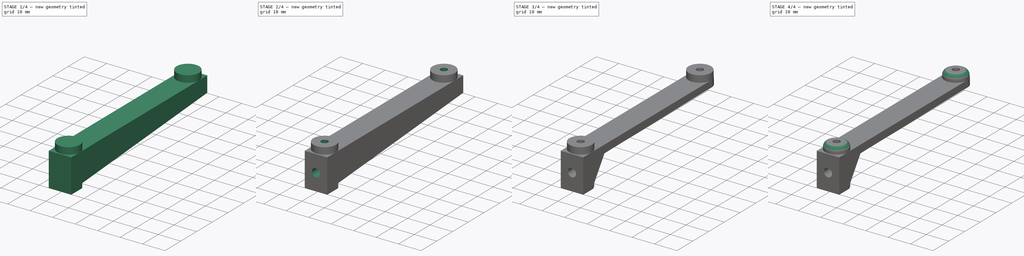
[diagram: build sequence overview — one tinted view per stage of 4, left to right]
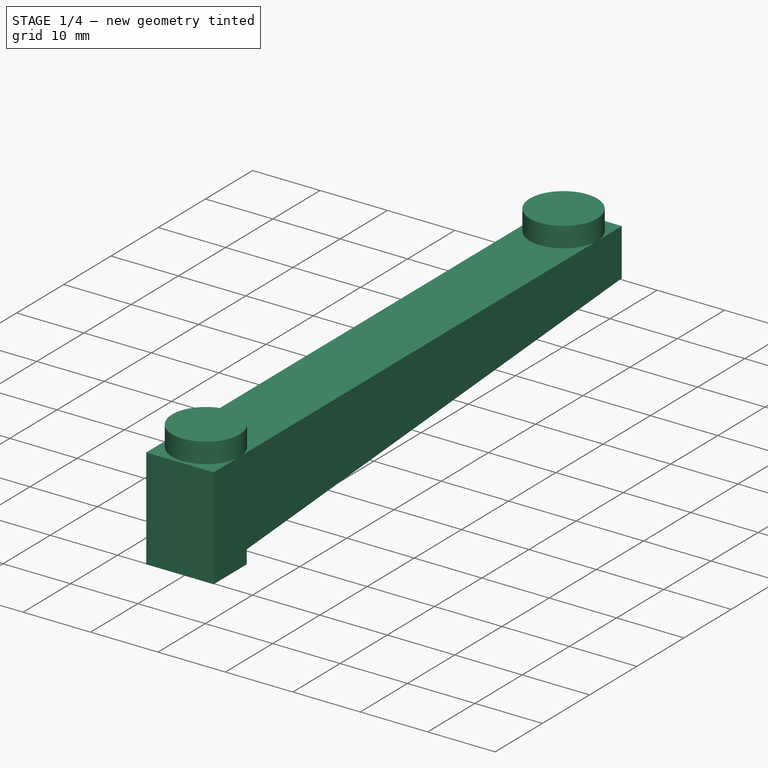
[diagram: stage 1 of 4 — iso view after this stage's code; geometry added in this stage tinted green]
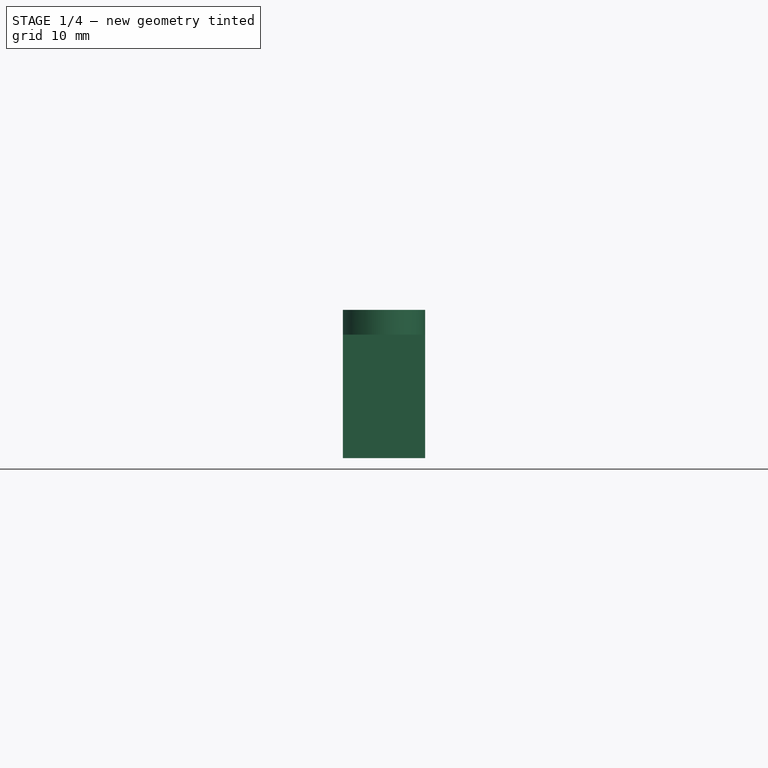
[diagram: stage 1 of 4 — front view after this stage's code; geometry added in this stage tinted green]
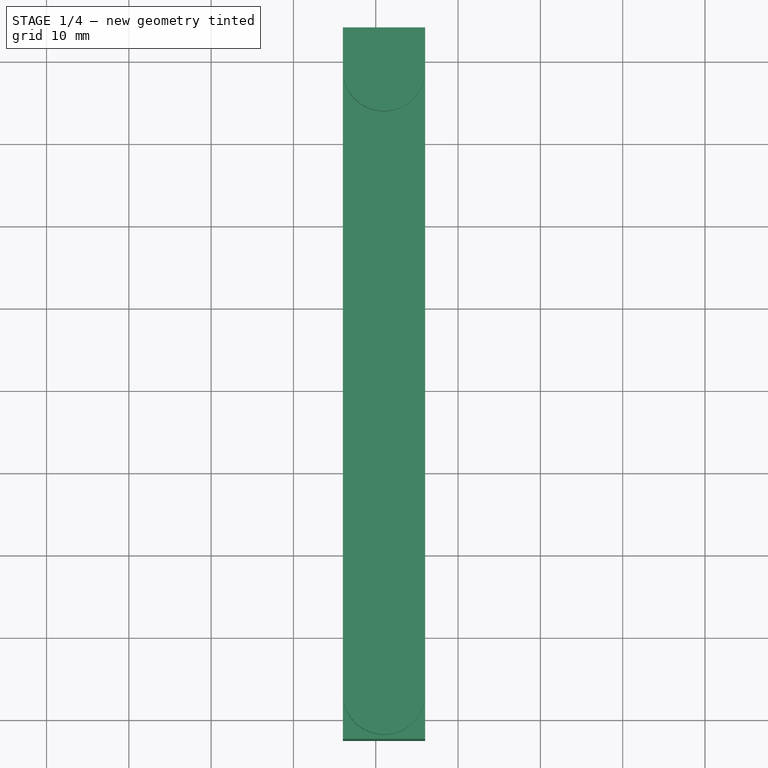
[diagram: stage 1 of 4 — top view after this stage's code; geometry added in this stage tinted green]
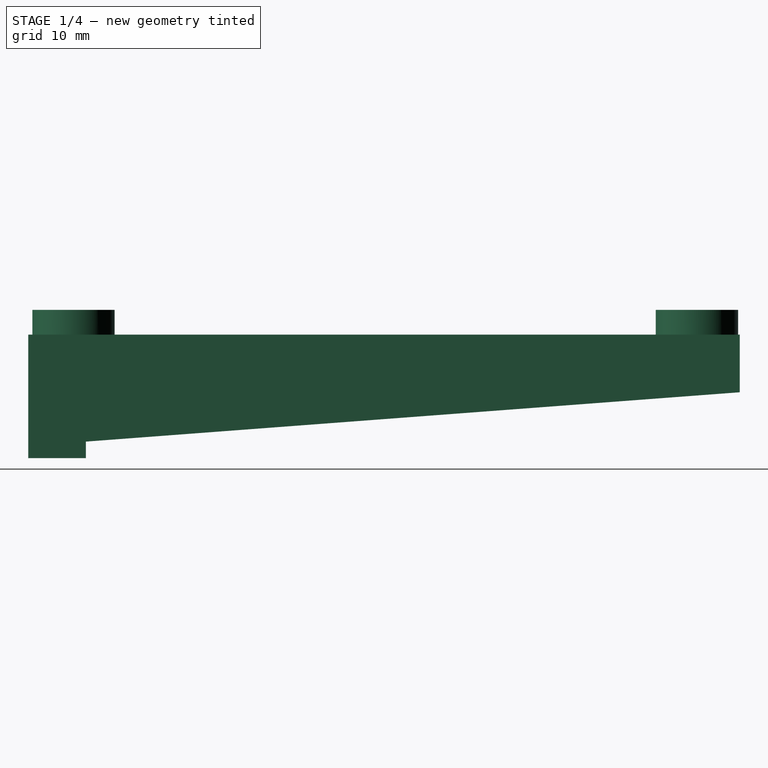
[diagram: stage 1 of 4 — right view after this stage's code; geometry added in this stage tinted green]
FCSTD DOCUMENT  (FreeCAD 0.15R4671 (Git))
Label: MksGenV1p3_MountingBracket
License: All rights reserved
LicenseURL: http://en.wikipedia.org/wiki/All_rights_reserved
objects: Sketcher::SketchObject×9, PartDesign::Pocket×7, Part::Feature×6, PartDesign::Fillet×4, PartDesign::Pad×2
note: 37 computed .brp shape members not serialized (recipe doc carries the construction recipe); baked Part::Feature solids carry a one-line shape summary decoded from their .brp

FEATURE [Part::Feature] Part__Feature  label="OB1515_45mm001"
  Placement = pos=(0,20.5,-22.5) rot=(1,0,0;4.71239rad)
  shape: bbox 15 x 45 x 15 mm, 158 faces (baked)
FEATURE [Part::Feature] Part__Feature001  label="OB1515_45mm002"
  Placement = pos=(20.5,0,-22.5) rot=(0.57735,-0.57735,0.57735;4.18879rad)
  shape: bbox 45 x 15 x 15 mm, 158 faces (baked)
FEATURE [Part::Feature] Part__Feature002  label="OB1515_45mm"
  Placement = pos=(7,7,15) rot=(0.92388,-0.382683,0;3.14159rad)
  shape: bbox 21.01 x 21.01 x 45 mm, 158 faces (baked)
FEATURE [Part::Feature] Part__Feature003  label="MKS_Gen_V1p3"
  Placement = pos=(108.25,50.875,-11.9) rot=(0,0,1;3.14159rad)
  shape: bbox 143.1 x 84.2 x 22.31 mm, 8746 faces, 0 solids (baked)
FEATURE [Part::Feature] Part__Feature004  label="BottomShortCorner"
  shape: bbox 73 x 73 x 15 mm, 51 faces (baked)
FEATURE [Sketcher::SketchObject] Sketch
  Placement = pos=(36,0,0) rot=(0.57735,0.57735,0.57735;2.0944rad)
  sketch-geometry (4):
    g0: LineSegment StartX=7.5 StartY=-15 StartZ=0 EndX=93.9461 EndY=-15 EndZ=0
    g1: LineSegment StartX=93.9461 StartY=-15 StartZ=0 EndX=93.9461 EndY=-30 EndZ=0
    g2: LineSegment StartX=93.9461 StartY=-30 StartZ=0 EndX=7.5 EndY=-30 EndZ=0
    g3: LineSegment StartX=7.5 StartY=-30 StartZ=0 EndX=7.5 EndY=-15 EndZ=0
  constraints (8):
    c: Coincident(g0,g1)
    c: Coincident(g1,g2)
    c: Coincident(g2,g3)
    c: Coincident(g3,g0)
    c: Horizontal(g0)
    c: Horizontal(g2)
    c: Vertical(g1)
    c: Vertical(g3)
FEATURE [PartDesign::Pad] Pad
  Length = 10
  Length2 = 100
  Placement = pos=(36,0,0) rot=(0.57735,0.57735,0.57735;2.0944rad)
  Sketch = -> Sketch
  Type = 0
FEATURE [Sketcher::SketchObject] Sketch001
  Placement = pos=(46,0,0) rot=(0.57735,0.57735,0.57735;2.0944rad)
  Support = -> Pad [Face6]
  sketch-geometry (5):
    g0: LineSegment StartX=14.5 StartY=-30.5 StartZ=0 EndX=14.5 EndY=-28 EndZ=0
    g1: LineSegment StartX=14.5 StartY=-28 StartZ=0 EndX=94 EndY=-22 EndZ=0
    g2: LineSegment StartX=94 StartY=-22 StartZ=0 EndX=96 EndY=-22 EndZ=0
    g3: LineSegment StartX=96 StartY=-22 StartZ=0 EndX=96 EndY=-30.5 EndZ=0
    g4: LineSegment StartX=96 StartY=-30.5 StartZ=0 EndX=14.5 EndY=-30.5 EndZ=0
  constraints (5):
    c: Coincident(g0,g1)
    c: Coincident(g1,g2)
    c: Coincident(g2,g3)
    c: Coincident(g3,g4)
    c: Coincident(g4,g0)
FEATURE [PartDesign::Pocket] Pocket
  Length = 5
  Placement = pos=(36,0,0) rot=(0.57735,0.57735,0.57735;2.0944rad)
  Sketch = -> Sketch001
  Type = 1
FEATURE [Sketcher::SketchObject] Sketch002
  Placement = pos=(36,0,-15) rot=(0,0,-1;1.5708rad)
  Support = -> Pocket [Face1]
  sketch-geometry (2):
    g0: Circle CenterX=-13 CenterY=5 CenterZ=0 NormalX=0 NormalY=0 NormalZ=1 Radius=5
    g1: Circle CenterX=-88.75 CenterY=5 CenterZ=0 NormalX=0 NormalY=0 NormalZ=1 Radius=5.00346
FEATURE [PartDesign::Pad] Pad001
  Length = 3
  Length2 = 100
  Placement = pos=(36,0,0) rot=(0.57735,0.57735,0.57735;2.0944rad)
  Sketch = -> Sketch002
  Type = 0
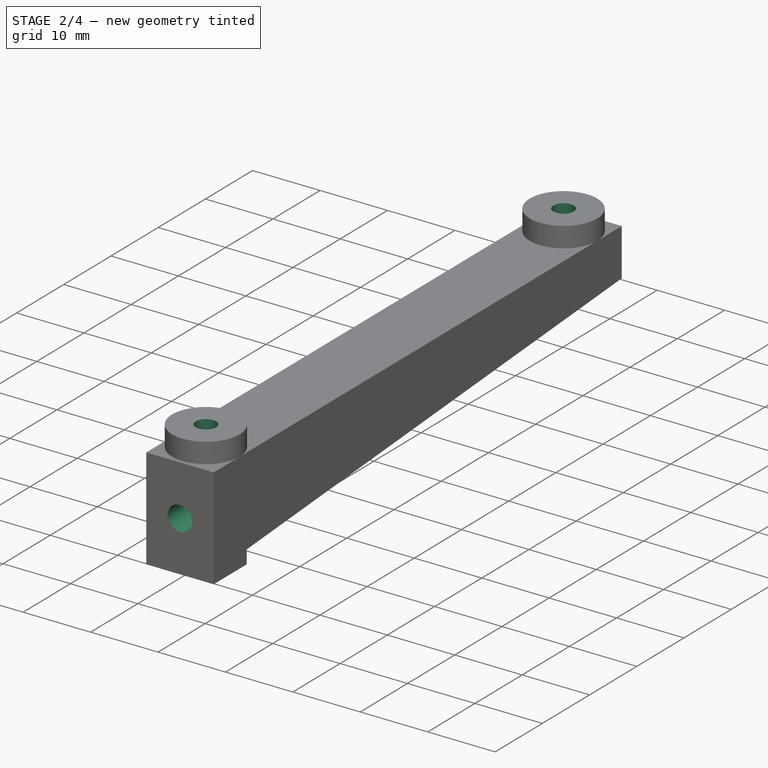
[diagram: stage 2 of 4 — iso view after this stage's code; geometry added in this stage tinted green]
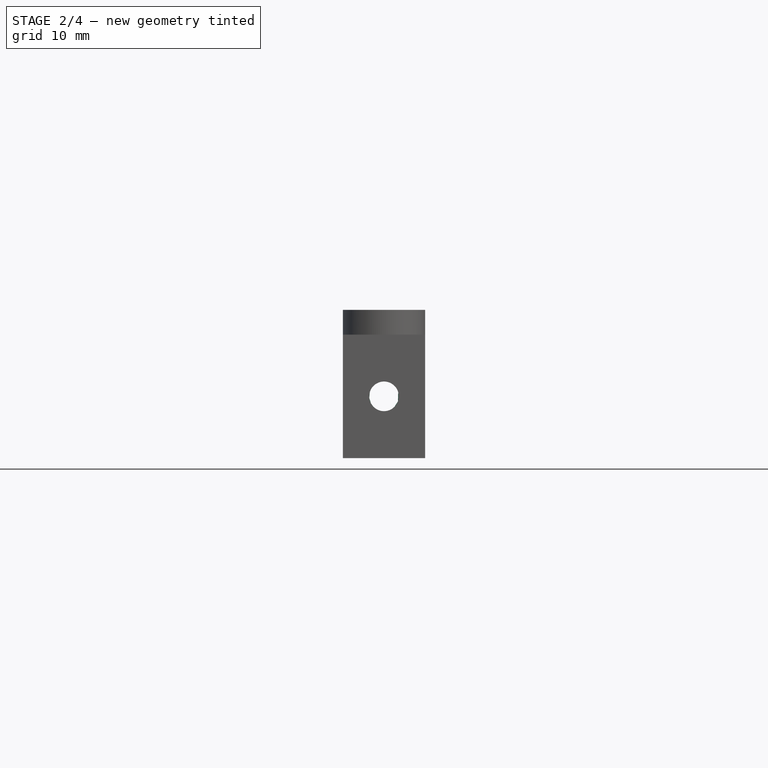
[diagram: stage 2 of 4 — front view after this stage's code; geometry added in this stage tinted green]
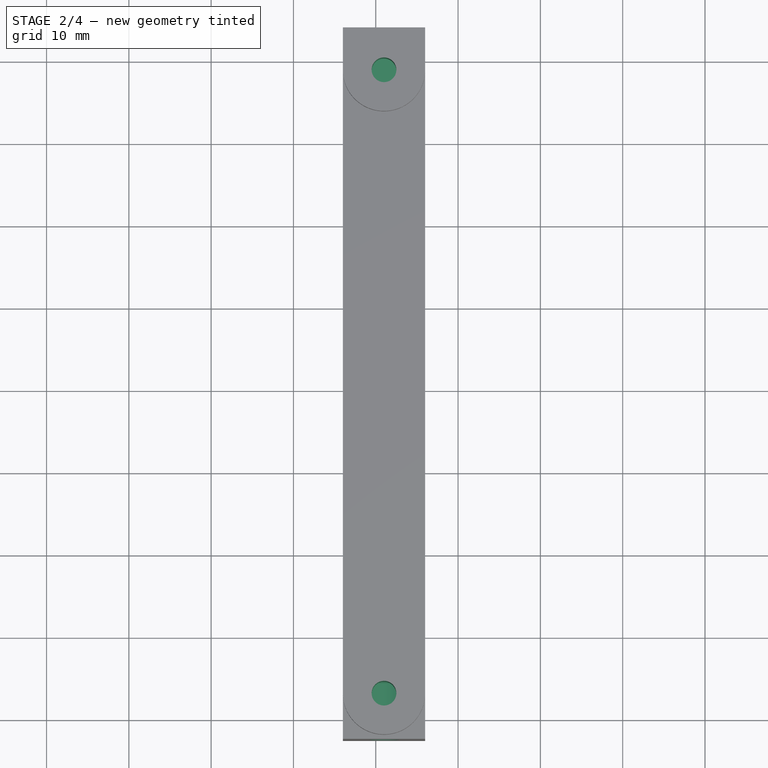
[diagram: stage 2 of 4 — top view after this stage's code; geometry added in this stage tinted green]
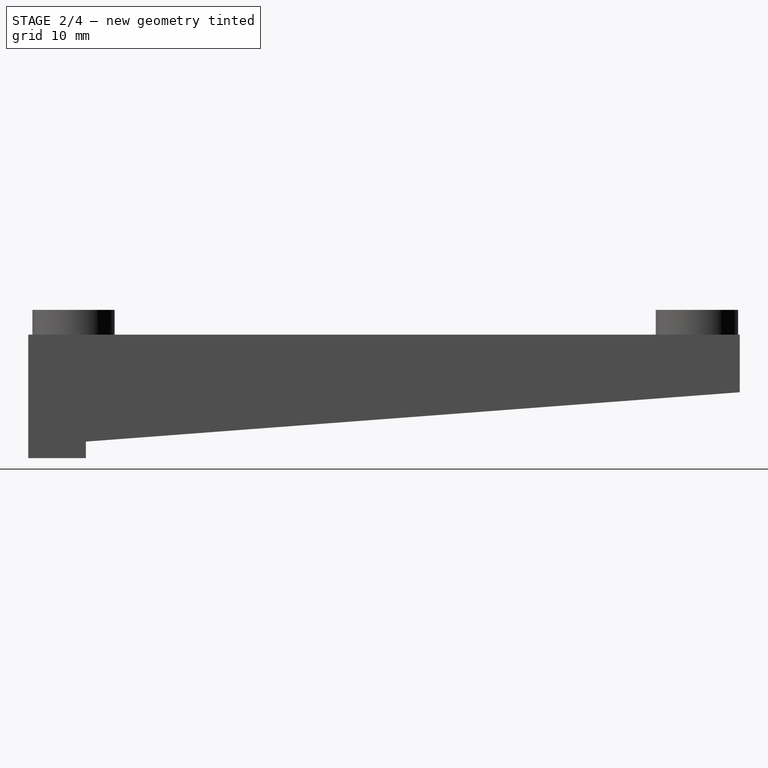
[diagram: stage 2 of 4 — right view after this stage's code; geometry added in this stage tinted green]
FEATURE [Sketcher::SketchObject] Sketch003
  Placement = pos=(36,0,-12) rot=(0,0,-1;1.5708rad)
  Support = -> Pad001 [Face14]
  sketch-geometry (2):
    g0: Circle CenterX=-88.75 CenterY=5 CenterZ=0 NormalX=0 NormalY=0 NormalZ=1 Radius=1.5
    g1: Circle CenterX=-13 CenterY=5 CenterZ=0 NormalX=0 NormalY=0 NormalZ=1 Radius=1.5
  constraints (2):
    c: Radius(g0) = 1.5
    c: Radius(g1) = 1.5
FEATURE [PartDesign::Pocket] Pocket001
  Length = 8
  Placement = pos=(36,0,0) rot=(0.57735,0.57735,0.57735;2.0944rad)
  Sketch = -> Sketch003
  Type = 0
FEATURE [Sketcher::SketchObject] Sketch004
  Placement = pos=(36,7.5,0) rot=(0.57735,0.57735,-0.57735;2.0944rad)
  Support = -> Pocket001 [Face1]
  sketch-geometry (1):
    g0: Circle CenterX=22.5 CenterY=5 CenterZ=0 NormalX=0 NormalY=0 NormalZ=1 Radius=1.8
  constraints (1):
    c: Radius(g0) = 1.8
FEATURE [PartDesign::Pocket] Pocket002
  Length = 5
  Placement = pos=(36,0,0) rot=(0.57735,0.57735,0.57735;2.0944rad)
  Sketch = -> Sketch004
  Type = 1
FEATURE [Sketcher::SketchObject] Sketch005
  Placement = pos=(36,14.5,0) rot=(0.57735,0.57735,0.57735;4.18879rad)
  Support = -> Pocket002 [Face7]
  sketch-geometry (1):
    g0: Circle CenterX=-22.5 CenterY=5 CenterZ=0 NormalX=0 NormalY=0 NormalZ=1 Radius=3.6
  constraints (1):
    c: Radius(g0) = 3.6
FEATURE [PartDesign::Pocket] Pocket003
  Length = 3
  Placement = pos=(36,0,0) rot=(0.57735,0.57735,0.57735;2.0944rad)
  Sketch = -> Sketch005
  Type = 0
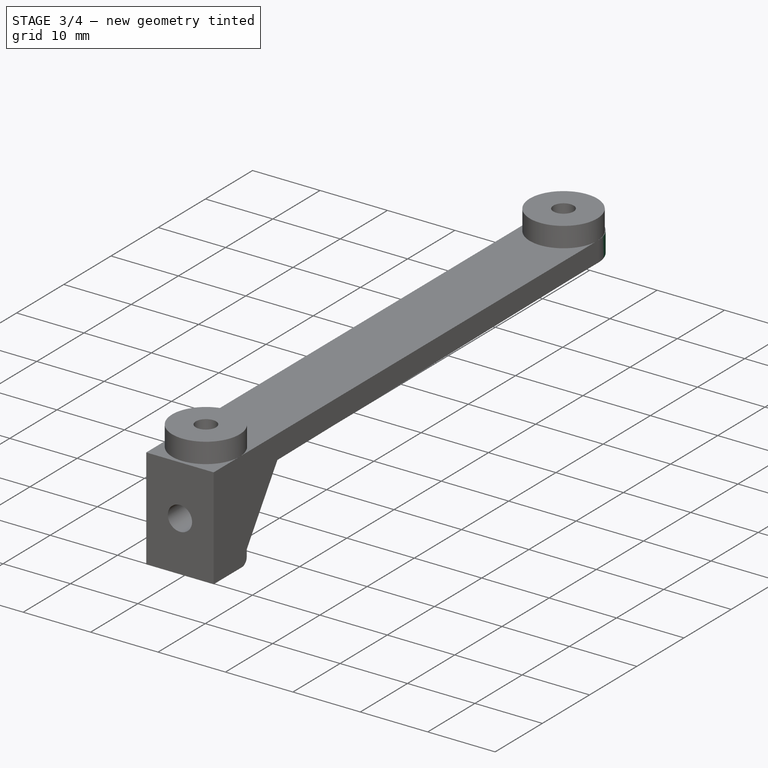
[diagram: stage 3 of 4 — iso view after this stage's code; geometry added in this stage tinted green]
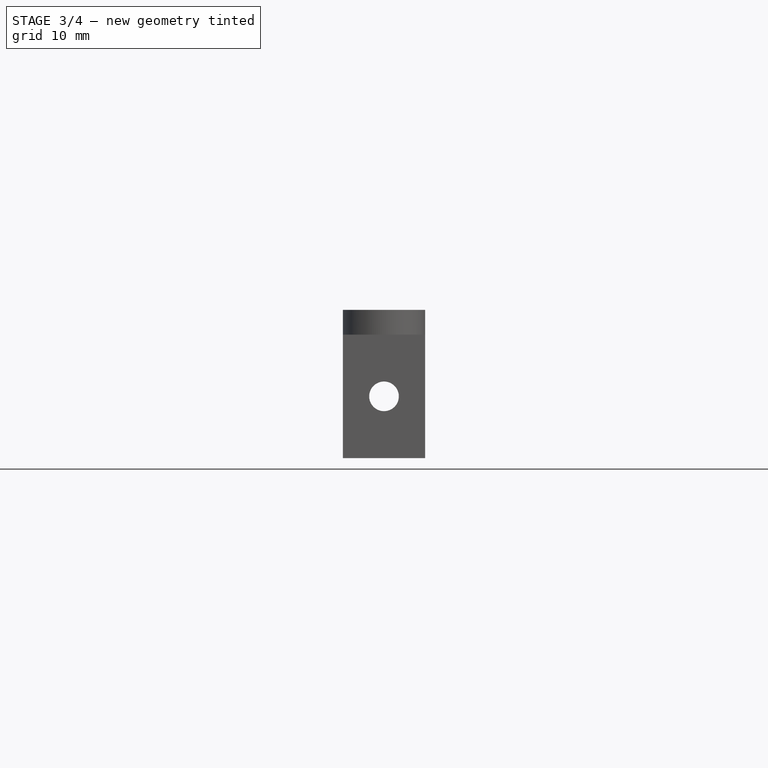
[diagram: stage 3 of 4 — front view after this stage's code; geometry added in this stage tinted green]
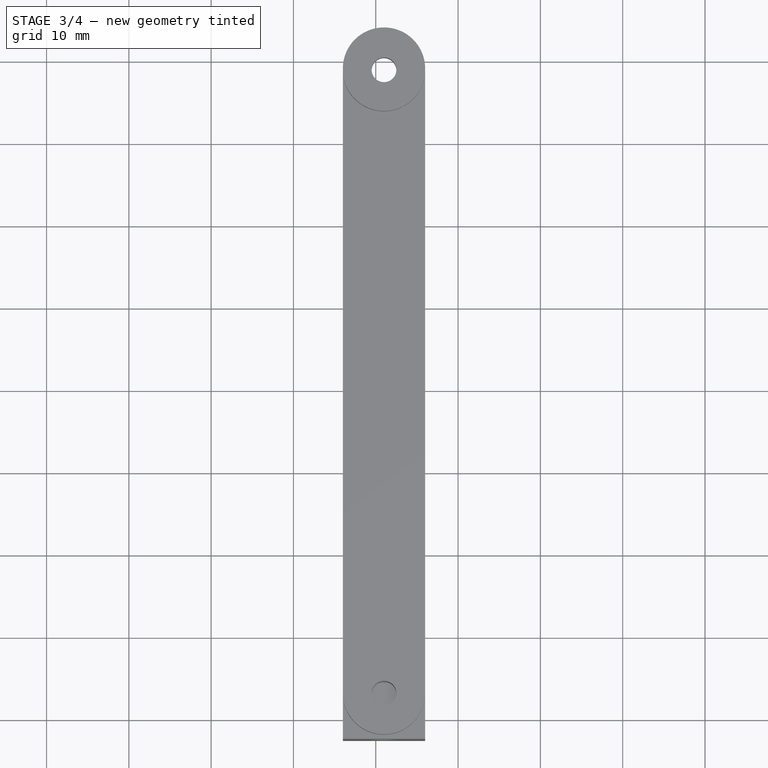
[diagram: stage 3 of 4 — top view after this stage's code; geometry added in this stage tinted green]
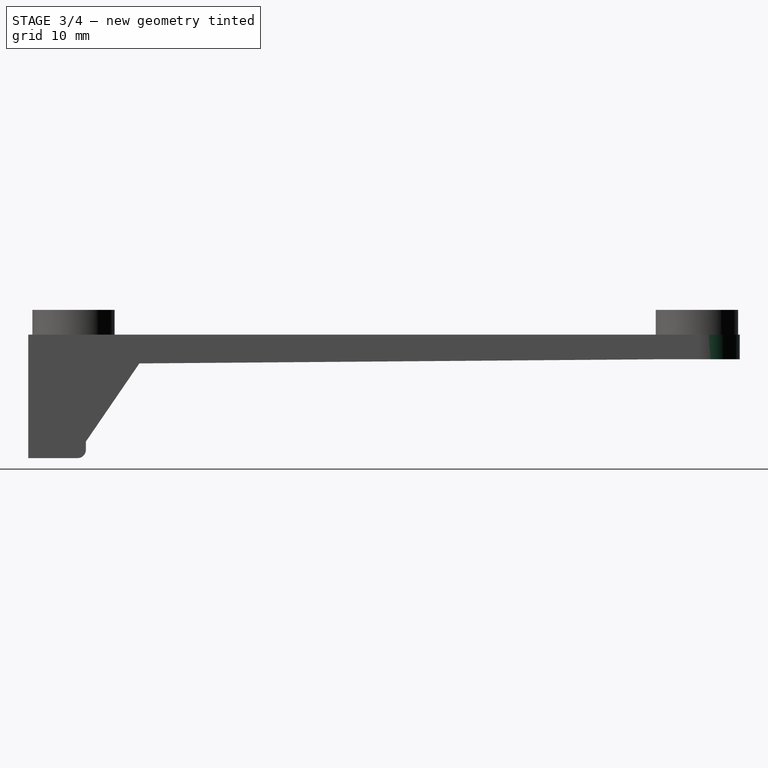
[diagram: stage 3 of 4 — right view after this stage's code; geometry added in this stage tinted green]
FEATURE [Sketcher::SketchObject] Sketch006
  Placement = pos=(36,14.5,0) rot=(0.57735,0.57735,0.57735;4.18879rad)
  Support = -> Pocket003 [Face7]
  sketch-geometry (1):
    g0: Circle CenterX=22.5 CenterY=5 CenterZ=0 NormalX=0 NormalY=0 NormalZ=1 Radius=3.61
  constraints (1):
    c: Radius(g0) = 3.61
FEATURE [PartDesign::Pocket] Pocket004
  Length = 5
  Placement = pos=(36,0,0) rot=(0.57735,0.57735,0.57735;2.0944rad)
  Sketch = -> Sketch006
  Type = 1
FEATURE [Sketcher::SketchObject] Sketch007
  Placement = pos=(46,0,0) rot=(0.57735,0.57735,0.57735;2.0944rad)
  Support = -> Pocket004 [Face4]
  sketch-geometry (6):
    g0: LineSegment StartX=14.5 StartY=-30.5 StartZ=0 EndX=14.5 EndY=-28 EndZ=0
    g1: LineSegment StartX=14.5 StartY=-28 StartZ=0 EndX=21 EndY=-18.5 EndZ=0
    g2: LineSegment StartX=21 StartY=-18.5 StartZ=0 EndX=83.5 EndY=-18 EndZ=0
    g3: LineSegment StartX=83.5 StartY=-18 StartZ=0 EndX=94.5 EndY=-18 EndZ=0
    g4: LineSegment StartX=94.5 StartY=-18 StartZ=0 EndX=94.5 EndY=-30.5 EndZ=0
    g5: LineSegment StartX=94.5 StartY=-30.5 StartZ=0 EndX=14.5 EndY=-30.5 EndZ=0
  constraints (11):
    c: Coincident(g0,g1)
    c: Coincident(g1,g2)
    c: Coincident(g2,g3)
    c: Coincident(g3,g4)
    c: Coincident(g4,g5)
    c: Coincident(g5,g0)
    c: Vertical(g0)
    c: DistanceX(g0) = 14.5
    c: DistanceY(g0) = -28
    c: Horizontal(g5)
    c: Horizontal(g3)
FEATURE [PartDesign::Pocket] Pocket005
  Length = 5
  Placement = pos=(36,0,0) rot=(0.57735,0.57735,0.57735;2.0944rad)
  Sketch = -> Sketch007
  Type = 1
FEATURE [PartDesign::Fillet] Fillet
  Base = -> Pocket005 [Edge22,Edge13]
  Placement = pos=(36,0,0) rot=(0.57735,0.57735,0.57735;2.0944rad)
  Radius = 4.99
FEATURE [PartDesign::Fillet] Fillet001
  Base = -> Fillet [Edge42]
  Placement = pos=(36,0,0) rot=(0.57735,0.57735,0.57735;2.0944rad)
  Radius = 1
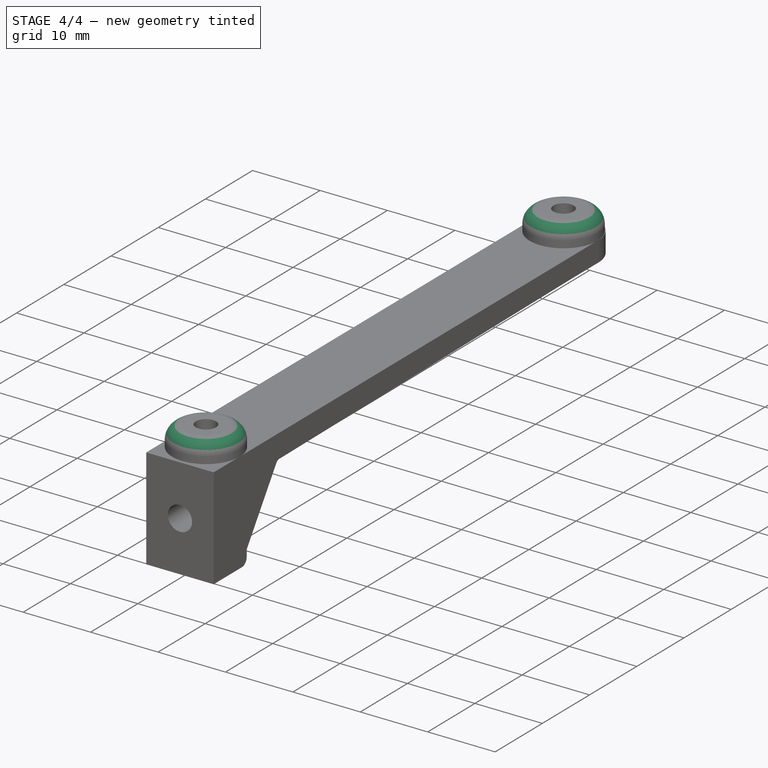
[diagram: stage 4 of 4 — iso view after this stage's code; geometry added in this stage tinted green]
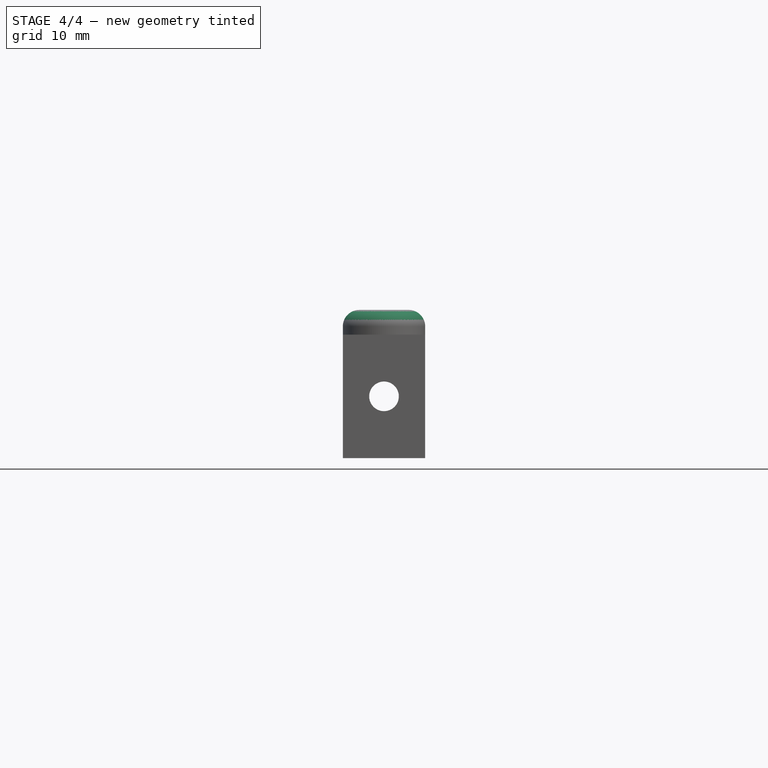
[diagram: stage 4 of 4 — front view after this stage's code; geometry added in this stage tinted green]
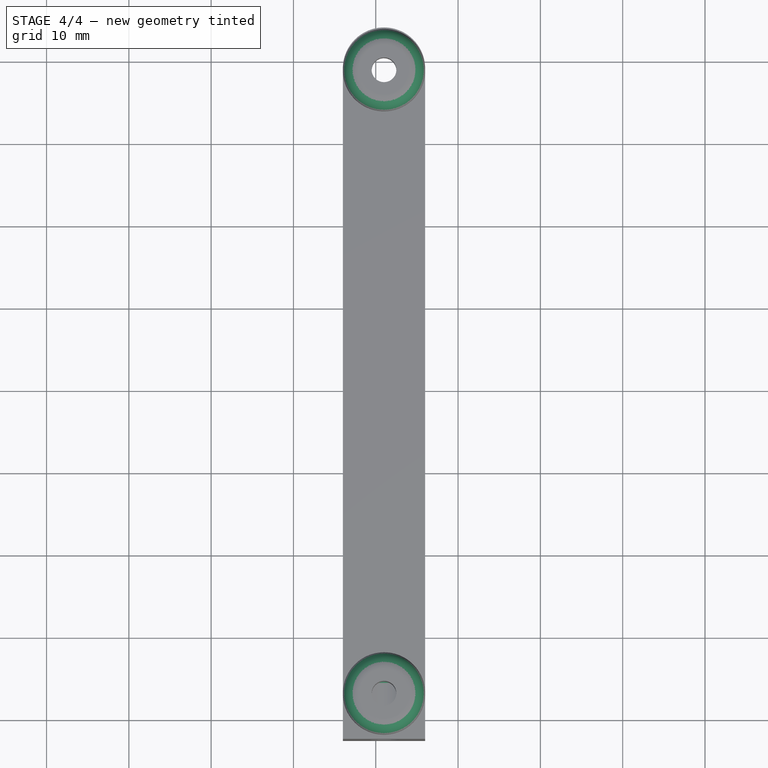
[diagram: stage 4 of 4 — top view after this stage's code; geometry added in this stage tinted green]
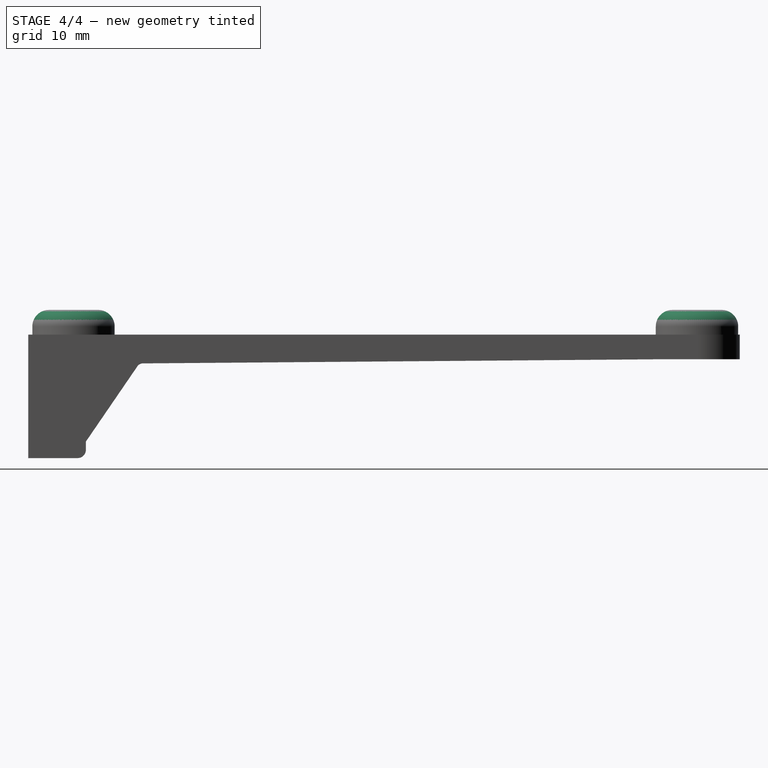
[diagram: stage 4 of 4 — right view after this stage's code; geometry added in this stage tinted green]
FEATURE [Sketcher::SketchObject] Sketch008
  Placement = pos=(36,14.5,0) rot=(0.57735,0.57735,-0.57735;2.0944rad)
  Support = -> Fillet001 [Face23]
  sketch-geometry (1):
    g0: Circle CenterX=22.5 CenterY=5 CenterZ=0 NormalX=0 NormalY=0 NormalZ=1 Radius=3.62
  constraints (1):
    c: Radius(g0) = 3.62
FEATURE [PartDesign::Pocket] Pocket006
  Length = 5
  Placement = pos=(36,0,0) rot=(0.57735,0.57735,0.57735;2.0944rad)
  Sketch = -> Sketch008
  Type = 1
FEATURE [PartDesign::Fillet] Fillet002
  Base = -> Pocket006 [Edge19]
  Placement = pos=(36,0,0) rot=(0.57735,0.57735,0.57735;2.0944rad)
  Radius = 0.8
FEATURE [PartDesign::Fillet] Fillet003
  Base = -> Fillet002 [Edge64,Edge62]
  Placement = pos=(36,0,0) rot=(0.57735,0.57735,0.57735;2.0944rad)
  Radius = 2
FEATURE [Part::Feature] Fillet004  label="MksGenV1p3_MountingBracket"
  shape: bbox 10.83 x 86.67 x 18 mm, 31 faces (baked)
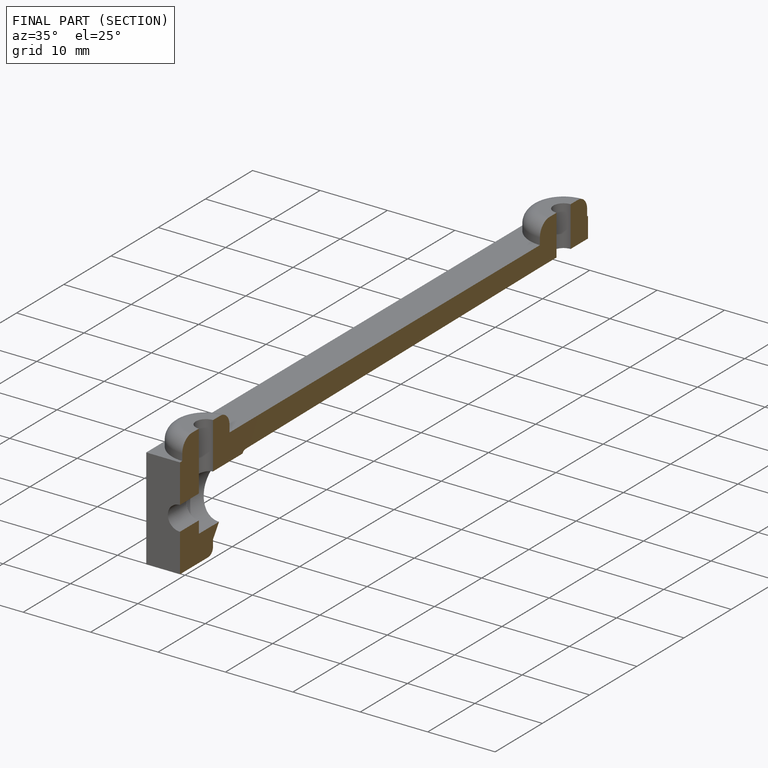
[diagram: finished part — half-section view (interior)]
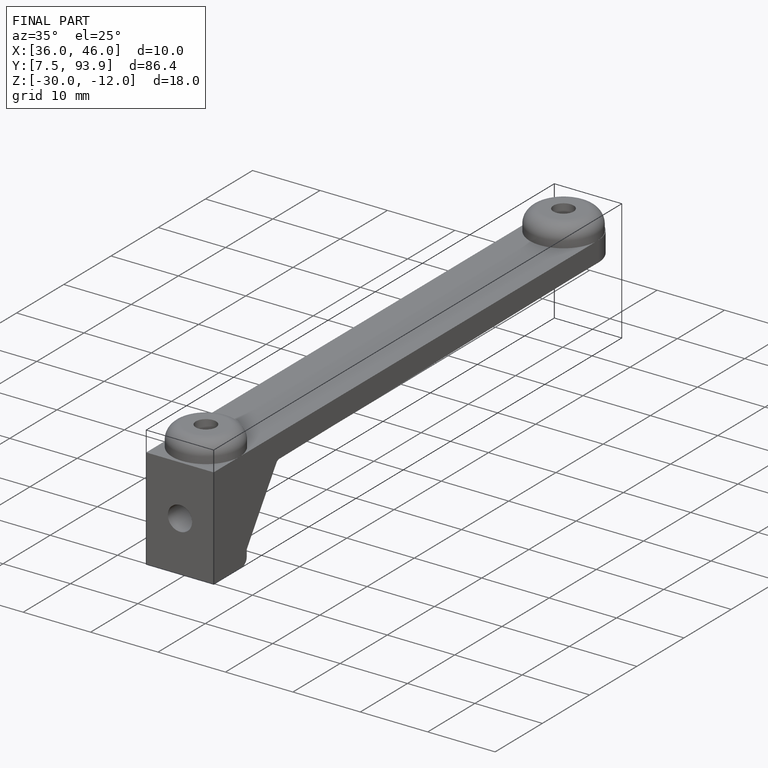
[diagram: finished part — iso view with bounding-box wireframe]
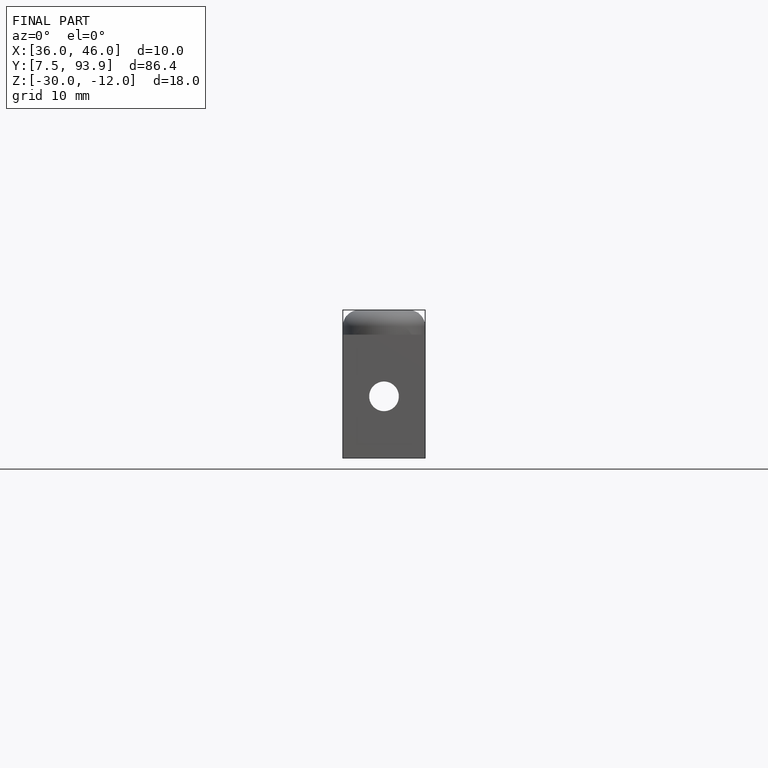
[diagram: finished part — front view with bounding-box wireframe]
